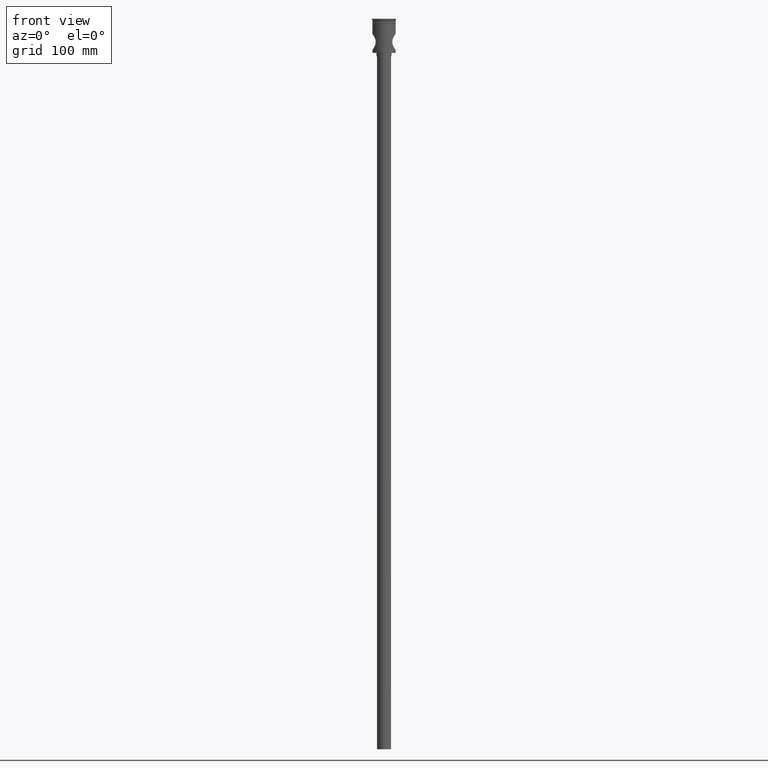
[diagram: clean part render]
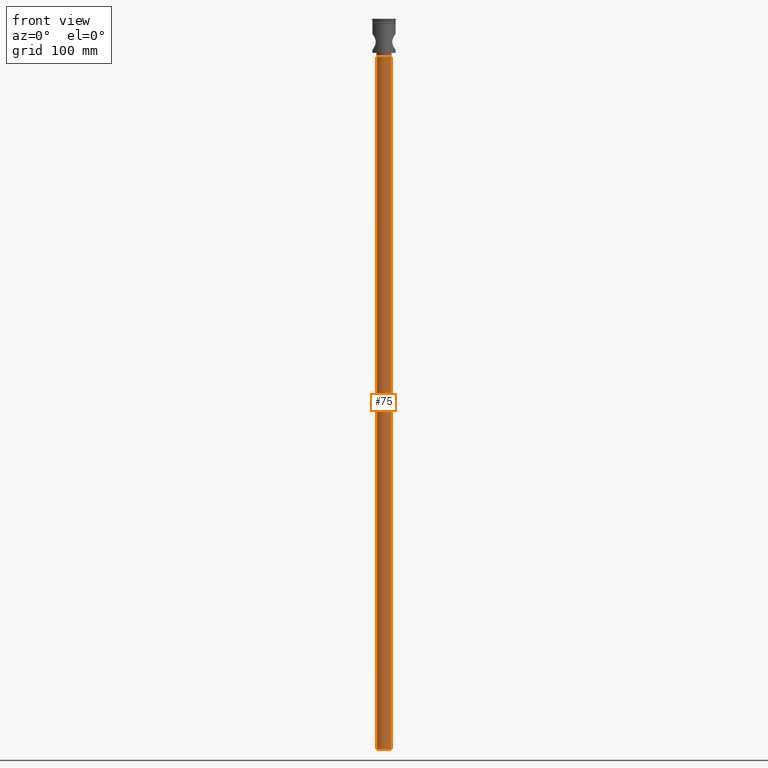
[diagram: same view with one face highlighted and labeled with its STEP entity id]
A machine part, front view. The second image highlights one B-rep face of the part: STEP entity #75.
In plain terms, the highlighted cylindrical surface (edge-blend (fillet) strip) has radius 6 mm, axis along (-0, -0, 1).
Its self-contained STEP definition (entity closure, byte-faithful):
#72 = CARTESIAN_POINT ( 'NONE',  ( 6.000000000000000888, 0.000000000000000000, -32.50000000000000000 ) ) ;
#75 = ADVANCED_FACE ( 'NONE', ( #1265 ), #1152, .T. ) ;
#106 = VERTEX_POINT ( 'NONE', #550 ) ;
#159 = ORIENTED_EDGE ( 'NONE', *, *, #265, .F. ) ;
#169 = DIRECTION ( 'NONE',  ( 0.000000000000000000, 0.000000000000000000, -1.000000000000000000 ) ) ;
#180 = DIRECTION ( 'NONE',  ( 0.000000000000000000, 0.000000000000000000, -1.000000000000000000 ) ) ;
#187 = DIRECTION ( 'NONE',  ( -1.000000000000000000, 0.000000000000000000, 0.000000000000000000 ) ) ;
#200 = VERTEX_POINT ( 'NONE', #820 ) ;
#205 = CARTESIAN_POINT ( 'NONE',  ( 0.000000000000000000, 0.000000000000000000, -629.5000000000000000 ) ) ;
#265 = EDGE_CURVE ( 'NONE', #106, #200, #313, .T. ) ;
#313 = CIRCLE ( 'NONE', #439, 6.000000000000000888 ) ;
#318 = DIRECTION ( 'NONE',  ( 1.000000000000000000, 0.000000000000000000, 0.000000000000000000 ) ) ;
#327 = ORIENTED_EDGE ( 'NONE', *, *, #478, .T. ) ;
#346 = DIRECTION ( 'NONE',  ( -0.000000000000000000, -0.000000000000000000, 1.000000000000000000 ) ) ;
#439 = AXIS2_PLACEMENT_3D ( 'NONE', #852, #169, #1090 ) ;
#478 = EDGE_CURVE ( 'NONE', #1249, #917, #538, .T. ) ;
#506 = EDGE_CURVE ( 'NONE', #106, #1249, #1528, .T. ) ;
#538 = CIRCLE ( 'NONE', #1413, 6.000000000000000888 ) ;
#550 = CARTESIAN_POINT ( 'NONE',  ( 6.000000000000000888, 0.000000000000000000, -629.5000000000000000 ) ) ;
#632 = DIRECTION ( 'NONE',  ( -0.000000000000000000, -0.000000000000000000, 1.000000000000000000 ) ) ;
#663 = VECTOR ( 'NONE', #346, 1000.000000000000000 ) ;
#820 = CARTESIAN_POINT ( 'NONE',  ( -6.000000000000000888, 7.347880794884120722E-16, -629.5000000000000000 ) ) ;
#852 = CARTESIAN_POINT ( 'NONE',  ( 0.000000000000000000, 0.000000000000000000, -629.5000000000000000 ) ) ;
#873 = CARTESIAN_POINT ( 'NONE',  ( -6.000000000000000888, 7.347880794884120722E-16, -32.50000000000000000 ) ) ;
#874 = EDGE_CURVE ( 'NONE', #200, #917, #1150, .T. ) ;
#889 = VECTOR ( 'NONE', #632, 1000.000000000000000 ) ;
#917 = VERTEX_POINT ( 'NONE', #873 ) ;
#1033 = DIRECTION ( 'NONE',  ( -0.000000000000000000, -0.000000000000000000, 1.000000000000000000 ) ) ;
#1059 = AXIS2_PLACEMENT_3D ( 'NONE', #205, #1033, #318 ) ;
#1090 = DIRECTION ( 'NONE',  ( -1.000000000000000000, 0.000000000000000000, 0.000000000000000000 ) ) ;
#1150 = LINE ( 'NONE', #1256, #889 ) ;
#1152 = CYLINDRICAL_SURFACE ( 'NONE', #1059, 6.000000000000000888 ) ;
#1221 = ORIENTED_EDGE ( 'NONE', *, *, #506, .T. ) ;
#1243 = CARTESIAN_POINT ( 'NONE',  ( 0.000000000000000000, 0.000000000000000000, -32.50000000000000000 ) ) ;
#1249 = VERTEX_POINT ( 'NONE', #72 ) ;
#1256 = CARTESIAN_POINT ( 'NONE',  ( -6.000000000000000888, 7.347880794884120722E-16, -629.5000000000000000 ) ) ;
#1265 = FACE_OUTER_BOUND ( 'NONE', #1349, .T. ) ;
#1290 = ORIENTED_EDGE ( 'NONE', *, *, #874, .F. ) ;
#1349 = EDGE_LOOP ( 'NONE', ( #1290, #159, #1221, #327 ) ) ;
#1398 = CARTESIAN_POINT ( 'NONE',  ( 6.000000000000000888, 0.000000000000000000, -629.5000000000000000 ) ) ;
#1413 = AXIS2_PLACEMENT_3D ( 'NONE', #1243, #180, #187 ) ;
#1528 = LINE ( 'NONE', #1398, #663 ) ;